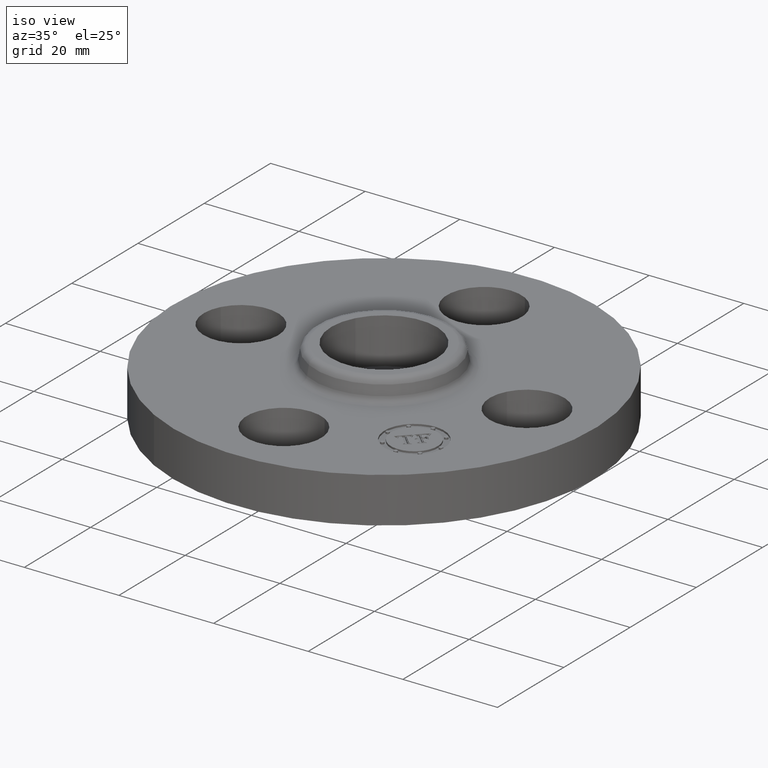
[diagram: clean part render]
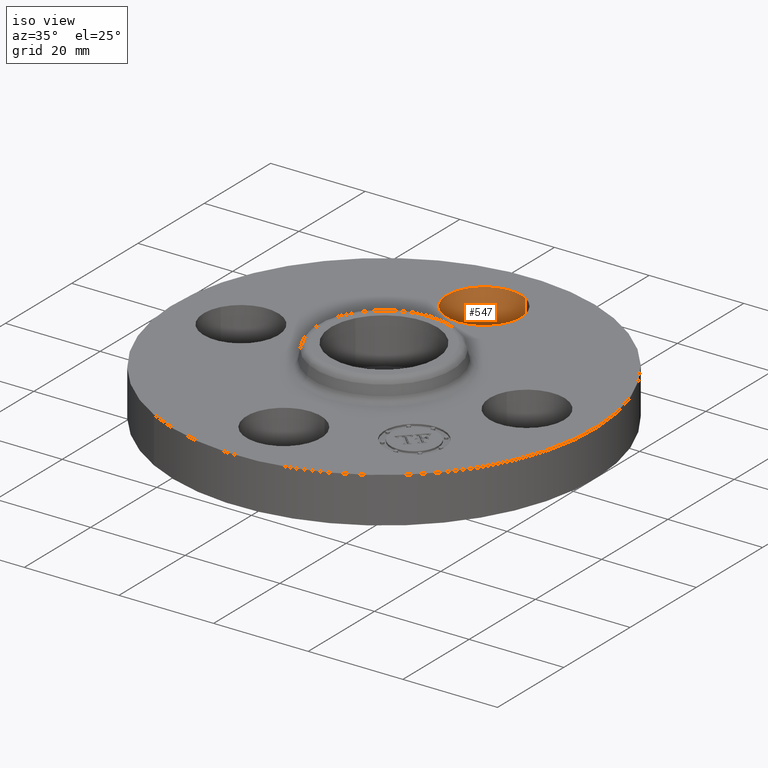
[diagram: same view with one face highlighted and labeled with its STEP entity id]
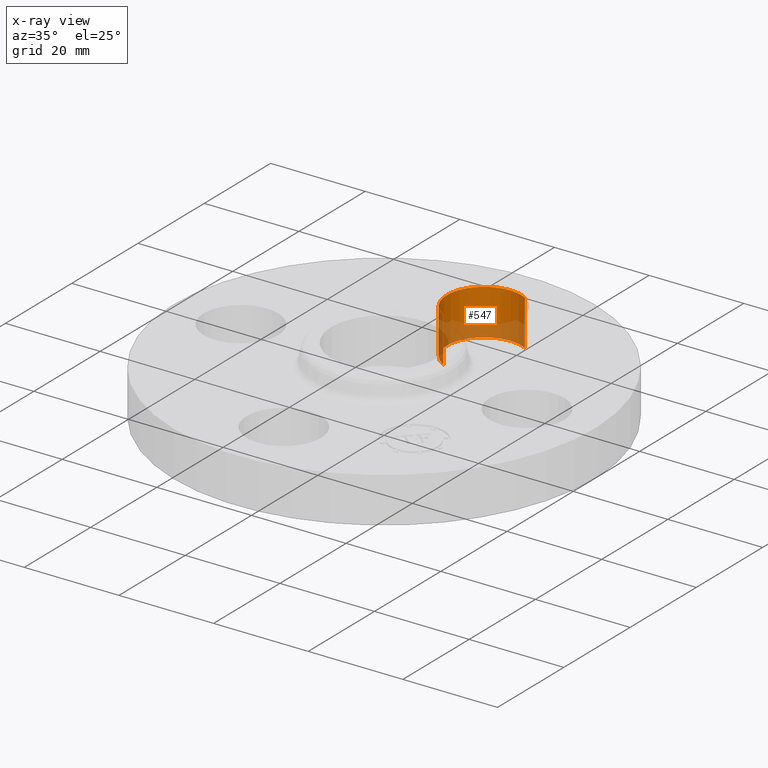
[diagram: x-ray of the same camera — body ghosted, the highlighted face saturated]
A machine part, iso view. The second image highlights one B-rep face of the part: STEP entity #547.
The next image is the same camera in x-ray: the body ghosted, the highlighted face saturated — about 37% of this face is hidden behind the body in this view.
In plain terms, the highlighted cylindrical surface (partial cylindrical patch) has radius 7.874 mm, axis along (0, 0, -1).
Its self-contained STEP definition (entity closure, byte-faithful):
#274=AXIS2_PLACEMENT_3D('Circle Axis2P3D',#272,#273,$) ;
#508=AXIS2_PLACEMENT_3D('Cylinder Axis2P3D',#505,#506,#507) ;
#538=AXIS2_PLACEMENT_3D('Circle Axis2P3D',#536,#537,$) ;
#272=CARTESIAN_POINT('Axis2P3D Location',(-2.09805925913E-016,1.19,0.)) ;
#276=CARTESIAN_POINT('Vertex',(-0.148621916968,0.917949405818,0.)) ;
#278=CARTESIAN_POINT('Vertex',(0.148621916968,1.46205059419,0.)) ;
#505=CARTESIAN_POINT('Axis2P3D Location',(-7.87288363731E-017,1.19,0.376062992128)) ;
#510=CARTESIAN_POINT('Line Origine',(0.148621916968,1.46205059419,0.190000000001)) ;
#514=CARTESIAN_POINT('Vertex',(0.148621916968,1.46205059419,0.380000000002)) ;
#517=CARTESIAN_POINT('Line Origine',(-0.148621916968,0.917949405818,0.190000000001)) ;
#521=CARTESIAN_POINT('Vertex',(-0.148621916968,0.917949405818,0.380000000002)) ;
#536=CARTESIAN_POINT('Axis2P3D Location',(-7.87288363731E-017,1.19,0.380000000002)) ;
#273=DIRECTION('Axis2P3D Direction',(0.,0.,-0.0393700787402)) ;
#506=DIRECTION('Axis2P3D Direction',(0.,0.,-0.0393700787402)) ;
#507=DIRECTION('Axis2P3D XDirection',(-0.0188750212049,-0.0345504945626,-0.)) ;
#511=DIRECTION('Vector Direction',(0.,0.,-0.0393700787402)) ;
#518=DIRECTION('Vector Direction',(0.,0.,-0.0393700787402)) ;
#537=DIRECTION('Axis2P3D Direction',(0.,0.,-0.0393700787402)) ;
#512=VECTOR('Line Direction',#511,0.0393700787402) ;
#519=VECTOR('Line Direction',#518,0.0393700787402) ;
#542=ORIENTED_EDGE('',*,*,#523,.F.) ;
#543=ORIENTED_EDGE('',*,*,#280,.T.) ;
#544=ORIENTED_EDGE('',*,*,#516,.T.) ;
#545=ORIENTED_EDGE('',*,*,#540,.F.) ;
#547=ADVANCED_FACE('PartBody',(#546),#509,.F.) ;
#275=CIRCLE('generated circle',#274,0.310000000001) ;
#539=CIRCLE('generated circle',#538,0.310000000001) ;
#509=CYLINDRICAL_SURFACE('generated cylinder',#508,0.310000000001) ;
#280=EDGE_CURVE('',#277,#279,#275,.T.) ;
#516=EDGE_CURVE('',#279,#515,#513,.F.) ;
#523=EDGE_CURVE('',#277,#522,#520,.F.) ;
#540=EDGE_CURVE('',#522,#515,#539,.T.) ;
#541=EDGE_LOOP('',(#542,#543,#544,#545)) ;
#546=FACE_OUTER_BOUND('',#541,.T.) ;
#513=LINE('Line',#510,#512) ;
#520=LINE('Line',#517,#519) ;
#277=VERTEX_POINT('',#276) ;
#279=VERTEX_POINT('',#278) ;
#515=VERTEX_POINT('',#514) ;
#522=VERTEX_POINT('',#521) ;